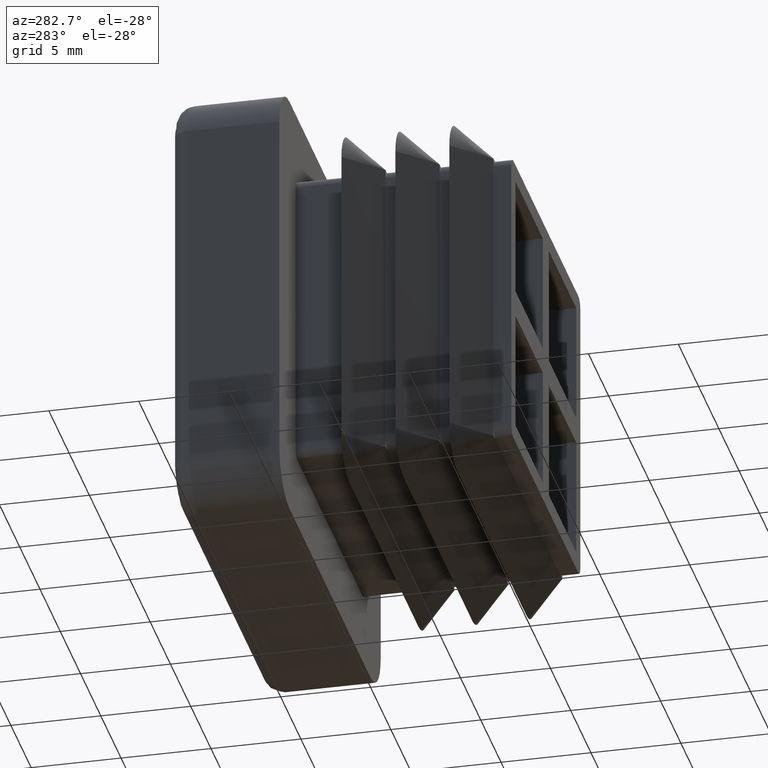
[diagram: clean part render]
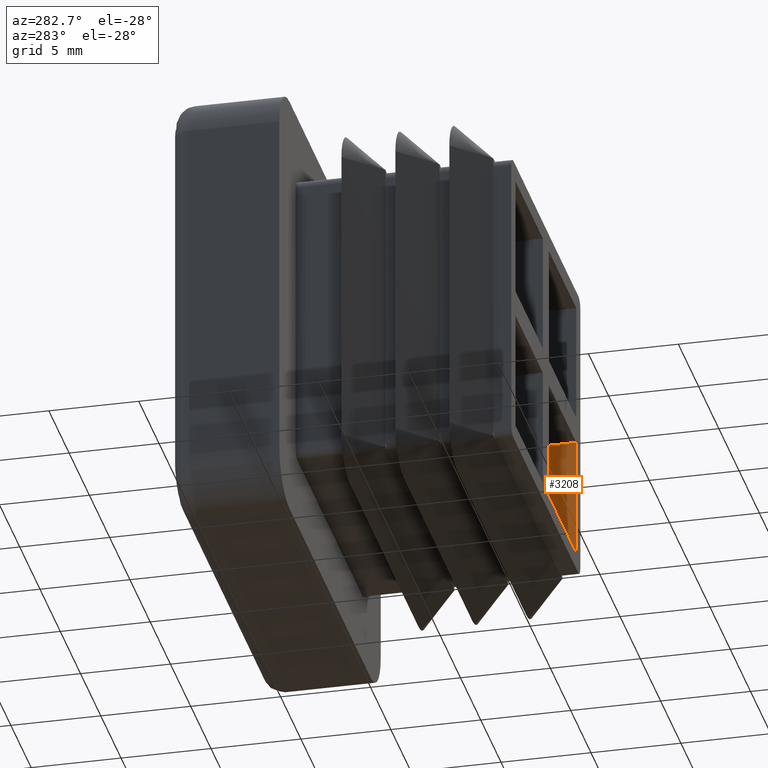
[diagram: same view with one face highlighted and labeled with its STEP entity id]
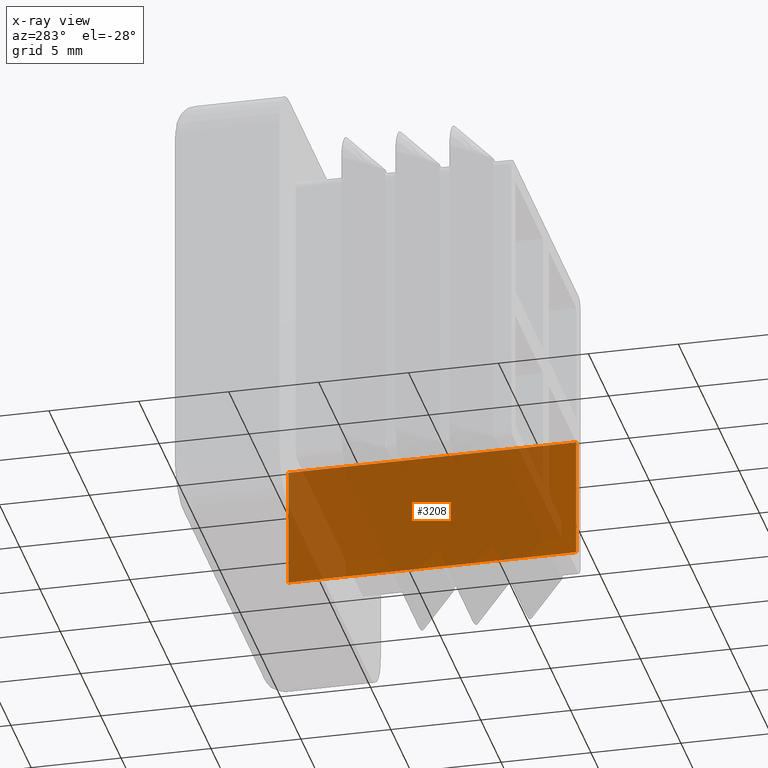
[diagram: x-ray of the same camera — body ghosted, the highlighted face saturated]
A machine part, auxiliary view. The second image highlights one B-rep face of the part: STEP entity #3208.
The next image is the same camera in x-ray: the body ghosted, the highlighted face saturated — about 87% of this face is hidden behind the body in this view.
In plain terms, the highlighted planar face has unit normal (1, 0, 0).
Its self-contained STEP definition (entity closure, byte-faithful):
#95=CARTESIAN_POINT('',(7.500000000000003,-12.0,-0.749999999999999));
#96=VERTEX_POINT('',#95);
#103=CARTESIAN_POINT('',(7.500000000000003,-12.0,-7.499000000000004));
#104=VERTEX_POINT('',#103);
#105=CARTESIAN_POINT('',(7.500000000000003,-12.0,-7.499000000000004));
#106=DIRECTION('',(0.0,0.0,1.0));
#107=VECTOR('',#106,6.749000000000004);
#108=LINE('',#105,#107);
#109=EDGE_CURVE('',#104,#96,#108,.T.);
#3166=CARTESIAN_POINT('',(7.500000000000003,4.0,-0.750000000000000));
#3167=VERTEX_POINT('',#3166);
#3168=CARTESIAN_POINT('',(7.500000000000003,4.0,-0.750000000000000));
#3169=DIRECTION('',(0.0,-1.0,0.0));
#3170=VECTOR('',#3169,16.0);
#3171=LINE('',#3168,#3170);
#3172=EDGE_CURVE('',#3167,#96,#3171,.T.);
#3185=CARTESIAN_POINT('',(7.500000000000003,-12.800000000000001,-0.412549999999999));
#3186=DIRECTION('',(1.0,0.0,0.0));
#3187=DIRECTION('',(0.0,0.0,-1.0));
#3188=AXIS2_PLACEMENT_3D('',#3185,#3186,#3187);
#3189=PLANE('',#3188);
#3190=CARTESIAN_POINT('',(7.500000000000003,4.0,-7.499000000000004));
#3191=VERTEX_POINT('',#3190);
#3192=CARTESIAN_POINT('',(7.500000000000003,4.0,-7.499000000000004));
#3193=DIRECTION('',(0.0,-1.0,0.0));
#3194=VECTOR('',#3193,16.0);
#3195=LINE('',#3192,#3194);
#3196=EDGE_CURVE('',#3191,#104,#3195,.T.);
#3197=ORIENTED_EDGE('',*,*,#3196,.T.);
#3198=ORIENTED_EDGE('',*,*,#109,.T.);
#3199=ORIENTED_EDGE('',*,*,#3172,.F.);
#3200=CARTESIAN_POINT('',(7.500000000000003,4.0,-7.499000000000004));
#3201=DIRECTION('',(0.0,0.0,1.0));
#3202=VECTOR('',#3201,6.749000000000004);
#3203=LINE('',#3200,#3202);
#3204=EDGE_CURVE('',#3191,#3167,#3203,.T.);
#3205=ORIENTED_EDGE('',*,*,#3204,.F.);
#3206=EDGE_LOOP('',(#3197,#3198,#3199,#3205));
#3207=FACE_OUTER_BOUND('',#3206,.T.);
#3208=ADVANCED_FACE('',(#3207),#3189,.F.);